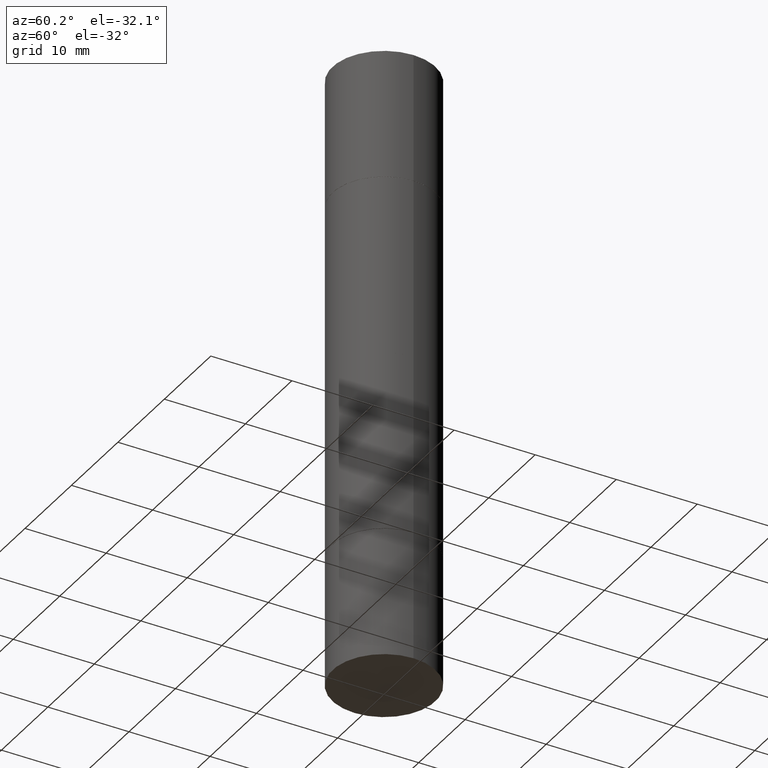
[diagram: clean part render]
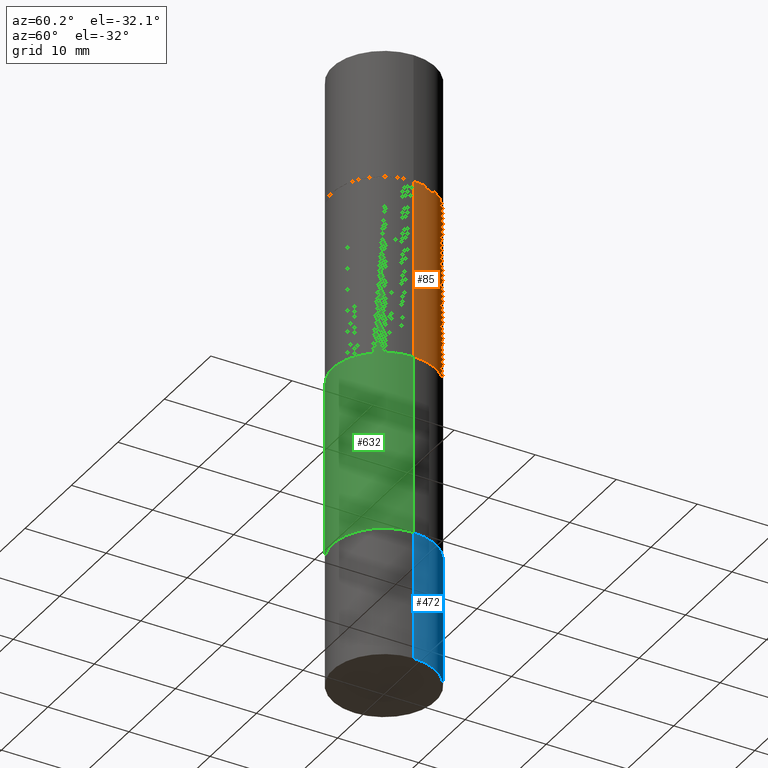
[diagram: same view with three faces highlighted in distinct colors, each labeled with its STEP entity id]
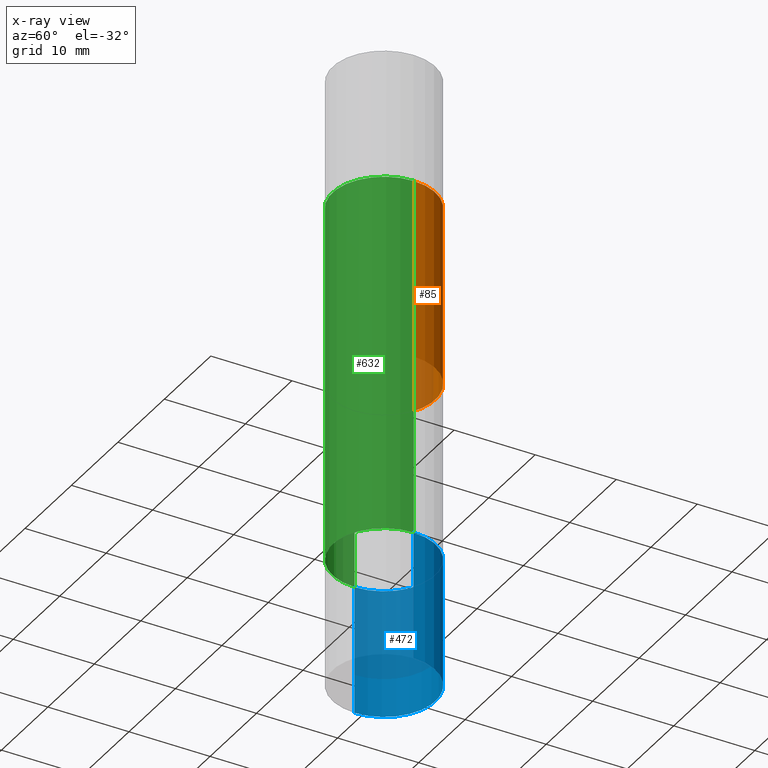
[diagram: x-ray of the same camera — body ghosted, the three highlighted faces saturated]
A machine part, auxiliary view with three faces highlighted in distinct colors.
The next image is the same camera in x-ray (body ghosted, the three faces saturated) — at least one of them is partly hidden behind the body in this view.
Their STEP definitions:

[orange] entity #85 — the highlighted cylindrical surface (partial cylindrical patch) has radius 6.35 mm, axis along (-0, -0, -1).
#1 = EDGE_CURVE ( 'NONE', #656, #668, #149, .T. ) ;
#4 = ORIENTED_EDGE ( 'NONE', *, *, #201, .F. ) ;
#57 = CIRCLE ( 'NONE', #367, 0.2500000000000000000 ) ;
#66 = LINE ( 'NONE', #267, #492 ) ;
#74 = DIRECTION ( 'NONE',  ( 1.000000000000000000, -6.982962677686266711E-15, 0.000000000000000000 ) ) ;
#85 = ADVANCED_FACE ( 'NONE', ( #635 ), #425, .T. ) ;
#120 = CARTESIAN_POINT ( 'NONE',  ( 5.805542945883514935E-29, -2.184435788568482141E-15, -0.6259999999999990017 ) ) ;
#149 = LINE ( 'NONE', #467, #625 ) ;
#151 = AXIS2_PLACEMENT_3D ( 'NONE', #375, #324, #215 ) ;
#152 = DIRECTION ( 'NONE',  ( 1.000000000000000000, -6.982962677686267499E-15, 0.000000000000000000 ) ) ;
#169 = ORIENTED_EDGE ( 'NONE', *, *, #1, .T. ) ;
#186 = EDGE_LOOP ( 'NONE', ( #4, #253, #169, #398 ) ) ;
#190 = EDGE_CURVE ( 'NONE', #674, #668, #219, .T. ) ;
#201 = EDGE_CURVE ( 'NONE', #506, #674, #66, .T. ) ;
#215 = DIRECTION ( 'NONE',  ( 0.000000000000000000, 1.000000000000000000, -3.278217592397118229E-15 ) ) ;
#219 = CIRCLE ( 'NONE', #151, 0.2499999999999998335 ) ;
#253 = ORIENTED_EDGE ( 'NONE', *, *, #341, .F. ) ;
#267 = CARTESIAN_POINT ( 'NONE',  ( -0.2499999999999998335, -8.761433126149462132E-15, -2.999999999999999112 ) ) ;
#285 = AXIS2_PLACEMENT_3D ( 'NONE', #333, #539, #152 ) ;
#324 = DIRECTION ( 'NONE',  ( -0.000000000000000000, -3.492185875197449130E-15, -1.000000000000000000 ) ) ;
#329 = CARTESIAN_POINT ( 'NONE',  ( 0.2500000000000000000, -3.930176457990049608E-15, -0.6259999999999990017 ) ) ;
#333 = CARTESIAN_POINT ( 'NONE',  ( 0.000000000000000000, -1.047655762559234344E-14, -2.999999999999999112 ) ) ;
#336 = DIRECTION ( 'NONE',  ( 2.445468806185136597E-29, 3.492890411551752677E-15, 1.000000000000000000 ) ) ;
#341 = EDGE_CURVE ( 'NONE', #656, #506, #57, .T. ) ;
#367 = AXIS2_PLACEMENT_3D ( 'NONE', #120, #336, #74 ) ;
#375 = CARTESIAN_POINT ( 'NONE',  ( 3.668203209277703774E-29, -5.237222008264716599E-15, -1.499999999999999556 ) ) ;
#398 = ORIENTED_EDGE ( 'NONE', *, *, #190, .F. ) ;
#425 = CYLINDRICAL_SURFACE ( 'NONE', #285, 0.2499999999999998335 ) ;
#467 = CARTESIAN_POINT ( 'NONE',  ( 0.2499999999999998335, -1.222229829501391012E-14, -2.999999999999999112 ) ) ;
#489 = DIRECTION ( 'NONE',  ( -2.445468806185136877E-29, -3.492890411551753071E-15, -1.000000000000000000 ) ) ;
#491 = CARTESIAN_POINT ( 'NONE',  ( -0.2499999999999998335, -1.995704398973716874E-15, -1.499999999999999556 ) ) ;
#492 = VECTOR ( 'NONE', #489, 39.37007874015748143 ) ;
#506 = VERTEX_POINT ( 'NONE', #528 ) ;
#528 = CARTESIAN_POINT ( 'NONE',  ( -0.2500000000000000000, -4.693112891255996450E-16, -0.6259999999999990017 ) ) ;
#539 = DIRECTION ( 'NONE',  ( -2.445468806185136597E-29, -3.492890411551752677E-15, -1.000000000000000000 ) ) ;
#583 = CARTESIAN_POINT ( 'NONE',  ( 0.2499999999999998335, -5.456569567838164864E-15, -1.499999999999999556 ) ) ;
#625 = VECTOR ( 'NONE', #627, 39.37007874015748143 ) ;
#627 = DIRECTION ( 'NONE',  ( -2.445468806185136877E-29, -3.492890411551753071E-15, -1.000000000000000000 ) ) ;
#635 = FACE_OUTER_BOUND ( 'NONE', #186, .T. ) ;
#656 = VERTEX_POINT ( 'NONE', #329 ) ;
#668 = VERTEX_POINT ( 'NONE', #583 ) ;
#674 = VERTEX_POINT ( 'NONE', #491 ) ;

[blue] entity #472 — the highlighted cylindrical surface (partial cylindrical patch) has radius 6.35 mm, axis along (-0, 0, 1).
#26 = CARTESIAN_POINT ( 'NONE',  ( -0.2500000000000000000, 1.776356839400250465E-15, -1.229733772563726445E-29 ) ) ;
#33 = ORIENTED_EDGE ( 'NONE', *, *, #550, .F. ) ;
#49 = AXIS2_PLACEMENT_3D ( 'NONE', #516, #464, #194 ) ;
#55 = CARTESIAN_POINT ( 'NONE',  ( 5.807988414689700538E-29, -8.292268179752471696E-15, -2.375000000000000000 ) ) ;
#81 = CARTESIAN_POINT ( 'NONE',  ( 7.336406418555409790E-29, -1.047444401652943635E-14, -3.000000000000000444 ) ) ;
#105 = AXIS2_PLACEMENT_3D ( 'NONE', #55, #111, #646 ) ;
#111 = DIRECTION ( 'NONE',  ( -2.445468806185136597E-29, 3.491481338843145583E-15, 1.000000000000000000 ) ) ;
#153 = CIRCLE ( 'NONE', #105, 0.2500000000000000000 ) ;
#182 = VERTEX_POINT ( 'NONE', #330 ) ;
#184 = LINE ( 'NONE', #234, #423 ) ;
#194 = DIRECTION ( 'NONE',  ( 1.000000000000000000, -6.982962677686266711E-15, 4.876176775795935793E-29 ) ) ;
#211 = EDGE_CURVE ( 'NONE', #452, #182, #184, .T. ) ;
#221 = DIRECTION ( 'NONE',  ( -2.445468806185136597E-29, 3.491481338843145583E-15, 1.000000000000000000 ) ) ;
#227 = DIRECTION ( 'NONE',  ( -2.445468806185136877E-29, 3.491481338843145188E-15, 1.000000000000000000 ) ) ;
#230 = EDGE_CURVE ( 'NONE', #416, #271, #658, .T. ) ;
#234 = CARTESIAN_POINT ( 'NONE',  ( 0.2500000000000000000, -1.745740669421566678E-15, 1.219044193948983948E-29 ) ) ;
#271 = VERTEX_POINT ( 'NONE', #610 ) ;
#302 = FACE_OUTER_BOUND ( 'NONE', #402, .T. ) ;
#326 = EDGE_CURVE ( 'NONE', #452, #416, #664, .T. ) ;
#330 = CARTESIAN_POINT ( 'NONE',  ( 0.2500000000000000000, -1.003800884917403837E-14, -2.375000000000000000 ) ) ;
#344 = DIRECTION ( 'NONE',  ( 1.000000000000000000, -6.982962677686262766E-15, 0.000000000000000000 ) ) ;
#400 = DIRECTION ( 'NONE',  ( -2.445468806185136877E-29, 3.491481338843145188E-15, 1.000000000000000000 ) ) ;
#402 = EDGE_LOOP ( 'NONE', ( #551, #660, #33, #574 ) ) ;
#405 = CYLINDRICAL_SURFACE ( 'NONE', #49, 0.2500000000000000000 ) ;
#412 = AXIS2_PLACEMENT_3D ( 'NONE', #81, #221, #344 ) ;
#413 = CARTESIAN_POINT ( 'NONE',  ( -0.2500000000000000000, -7.606999258740704349E-15, -3.000000000000000444 ) ) ;
#416 = VERTEX_POINT ( 'NONE', #413 ) ;
#423 = VECTOR ( 'NONE', #400, 39.37007874015748143 ) ;
#452 = VERTEX_POINT ( 'NONE', #663 ) ;
#464 = DIRECTION ( 'NONE',  ( -2.445468806185136597E-29, 3.491481338843145583E-15, 1.000000000000000000 ) ) ;
#472 = ADVANCED_FACE ( 'NONE', ( #302 ), #405, .T. ) ;
#516 = CARTESIAN_POINT ( 'NONE',  ( 0.000000000000000000, 0.000000000000000000, 0.000000000000000000 ) ) ;
#545 = VECTOR ( 'NONE', #227, 39.37007874015748143 ) ;
#550 = EDGE_CURVE ( 'NONE', #182, #271, #153, .T. ) ;
#551 = ORIENTED_EDGE ( 'NONE', *, *, #326, .T. ) ;
#574 = ORIENTED_EDGE ( 'NONE', *, *, #211, .F. ) ;
#610 = CARTESIAN_POINT ( 'NONE',  ( -0.2500000000000000000, -7.606999258740704349E-15, -2.375000000000000000 ) ) ;
#646 = DIRECTION ( 'NONE',  ( 1.000000000000000000, -6.982962677686266711E-15, 0.000000000000000000 ) ) ;
#658 = LINE ( 'NONE', #26, #545 ) ;
#660 = ORIENTED_EDGE ( 'NONE', *, *, #230, .T. ) ;
#663 = CARTESIAN_POINT ( 'NONE',  ( 0.2500000000000000000, -1.222018468595100303E-14, -3.000000000000000444 ) ) ;
#664 = CIRCLE ( 'NONE', #412, 0.2500000000000000000 ) ;

[green] entity #632 — the highlighted cylindrical surface (partial cylindrical patch) has radius 6.35 mm, axis along (-0, -0, -1).
#2 = DIRECTION ( 'NONE',  ( 1.000000000000000000, -6.982962677686266711E-15, 0.000000000000000000 ) ) ;
#8 = DIRECTION ( 'NONE',  ( 1.000000000000000000, -6.982962677686267499E-15, 0.000000000000000000 ) ) ;
#11 = VERTEX_POINT ( 'NONE', #192 ) ;
#22 = DIRECTION ( 'NONE',  ( -2.445468806185136597E-29, 3.491481338843145583E-15, 1.000000000000000000 ) ) ;
#36 = DIRECTION ( 'NONE',  ( -2.445468806185136877E-29, -3.492890411551753071E-15, -1.000000000000000000 ) ) ;
#53 = CARTESIAN_POINT ( 'NONE',  ( 0.2500000000000000000, -3.930176457990049608E-15, -0.6259999999999990017 ) ) ;
#90 = CARTESIAN_POINT ( 'NONE',  ( -0.2500000000000000000, -4.693112891255996450E-16, -0.6259999999999990017 ) ) ;
#108 = DIRECTION ( 'NONE',  ( -2.445468806185136597E-29, -3.492890411551752677E-15, -1.000000000000000000 ) ) ;
#119 = ORIENTED_EDGE ( 'NONE', *, *, #511, .F. ) ;
#157 = CYLINDRICAL_SURFACE ( 'NONE', #647, 0.2499999999999998335 ) ;
#168 = DIRECTION ( 'NONE',  ( 1.000000000000000000, -6.982962677686266711E-15, 0.000000000000000000 ) ) ;
#191 = CARTESIAN_POINT ( 'NONE',  ( -0.2499999999999998335, -8.761433126149462132E-15, -2.999999999999999112 ) ) ;
#192 = CARTESIAN_POINT ( 'NONE',  ( 0.2500000000000000000, -1.003451736783519537E-14, -2.374000000000000110 ) ) ;
#214 = CARTESIAN_POINT ( 'NONE',  ( 5.805542945883514935E-29, -2.184435788568482141E-15, -0.6259999999999990017 ) ) ;
#238 = EDGE_CURVE ( 'NONE', #517, #11, #443, .T. ) ;
#251 = CIRCLE ( 'NONE', #346, 0.2500000000000000000 ) ;
#270 = CARTESIAN_POINT ( 'NONE',  ( 0.2499999999999998335, -1.222229829501391012E-14, -2.999999999999999112 ) ) ;
#331 = EDGE_CURVE ( 'NONE', #338, #11, #355, .T. ) ;
#338 = VERTEX_POINT ( 'NONE', #602 ) ;
#346 = AXIS2_PLACEMENT_3D ( 'NONE', #214, #640, #2 ) ;
#355 = CIRCLE ( 'NONE', #665, 0.2500000000000000000 ) ;
#372 = FACE_OUTER_BOUND ( 'NONE', #572, .T. ) ;
#386 = EDGE_CURVE ( 'NONE', #447, #338, #510, .T. ) ;
#393 = VECTOR ( 'NONE', #36, 39.37007874015748143 ) ;
#443 = LINE ( 'NONE', #270, #593 ) ;
#447 = VERTEX_POINT ( 'NONE', #90 ) ;
#510 = LINE ( 'NONE', #191, #393 ) ;
#511 = EDGE_CURVE ( 'NONE', #447, #517, #251, .T. ) ;
#517 = VERTEX_POINT ( 'NONE', #53 ) ;
#522 = ORIENTED_EDGE ( 'NONE', *, *, #238, .F. ) ;
#572 = EDGE_LOOP ( 'NONE', ( #119, #624, #588, #522 ) ) ;
#585 = CARTESIAN_POINT ( 'NONE',  ( 0.000000000000000000, -1.047655762559234344E-14, -2.999999999999999112 ) ) ;
#588 = ORIENTED_EDGE ( 'NONE', *, *, #331, .T. ) ;
#593 = VECTOR ( 'NONE', #616, 39.37007874015748143 ) ;
#602 = CARTESIAN_POINT ( 'NONE',  ( -0.2500000000000000000, -3.522097508821832131E-15, -2.374000000000000110 ) ) ;
#616 = DIRECTION ( 'NONE',  ( -2.445468806185136877E-29, -3.492890411551753071E-15, -1.000000000000000000 ) ) ;
#624 = ORIENTED_EDGE ( 'NONE', *, *, #386, .T. ) ;
#632 = ADVANCED_FACE ( 'NONE', ( #372 ), #157, .T. ) ;
#640 = DIRECTION ( 'NONE',  ( 2.445468806185136597E-29, 3.492890411551752677E-15, 1.000000000000000000 ) ) ;
#647 = AXIS2_PLACEMENT_3D ( 'NONE', #585, #108, #8 ) ;
#649 = CARTESIAN_POINT ( 'NONE',  ( 5.805542945883514935E-29, -8.288776698413628688E-15, -2.374000000000000110 ) ) ;
#665 = AXIS2_PLACEMENT_3D ( 'NONE', #649, #22, #168 ) ;